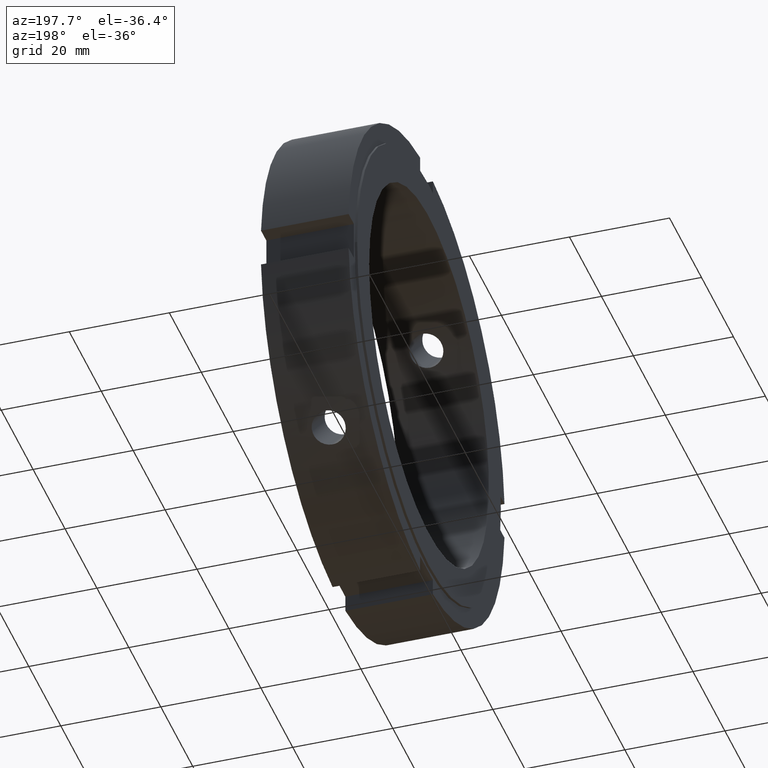
[diagram: clean part render]
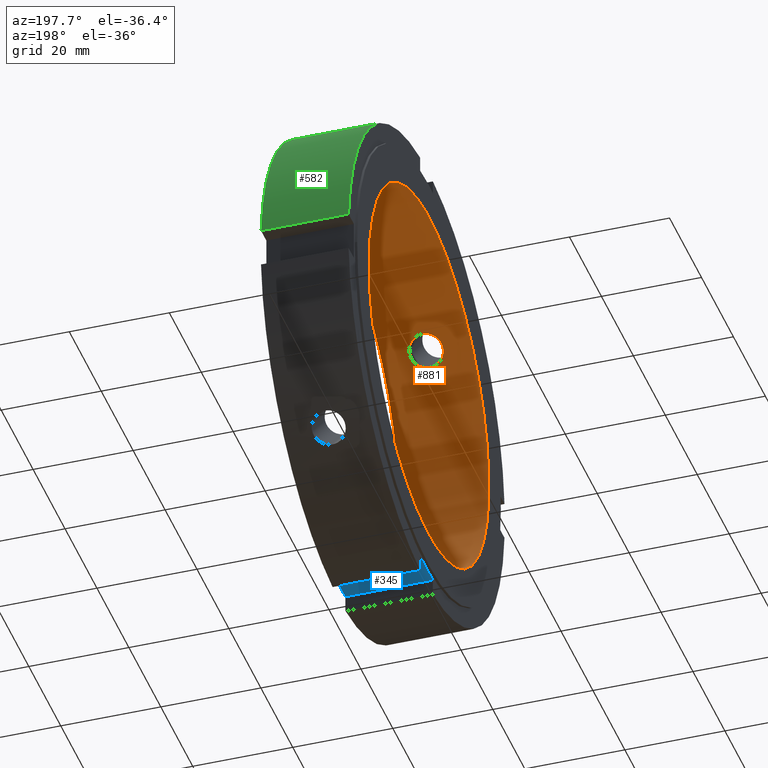
[diagram: same view with three faces highlighted in distinct colors, each labeled with its STEP entity id]
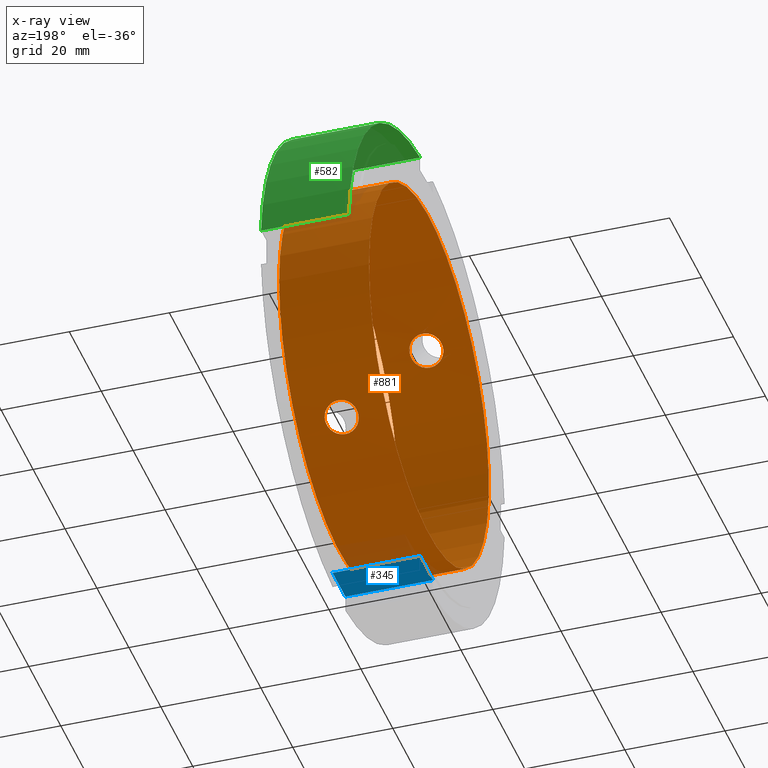
[diagram: x-ray of the same camera — body ghosted, the three highlighted faces saturated]
A machine part, auxiliary view with three faces highlighted in distinct colors.
The next image is the same camera in x-ray (body ghosted, the three faces saturated) — at least one of them is partly hidden behind the body in this view.
Their STEP definitions:

[orange] entity #881 — the highlighted cylindrical surface (bore or boss wall) has radius 37.5 mm, axis along (1, 0, 0).
#114=CARTESIAN_POINT('',(8.999999999999993,-28.762228970976587,24.062090196429633));
#115=VERTEX_POINT('',#114);
#116=CARTESIAN_POINT('',(8.999999999999993,-28.762228970976590,24.062090196429629));
#117=CARTESIAN_POINT('',(9.417541638844668,-28.762228970976590,24.062090196429629));
#118=CARTESIAN_POINT('',(9.862764178717347,-28.708652683310820,24.126587550880750));
#119=CARTESIAN_POINT('',(10.681540739722749,-28.488478344139992,24.386175741150169));
#120=CARTESIAN_POINT('',(11.055113459979346,-28.321602479941419,24.580971807259754));
#121=CARTESIAN_POINT('',(11.645024696410914,-27.930664661521433,25.024294459997574));
#122=CARTESIAN_POINT('',(11.900765851519012,-27.680444806661392,25.302386597793998));
#123=CARTESIAN_POINT('',(12.240009553361961,-27.121133799347700,25.901001789005239));
#124=CARTESIAN_POINT('',(12.323499999999994,-26.811750199984601,26.221258389006469));
#125=CARTESIAN_POINT('',(12.323499999999994,-26.221258389006433,26.811750199984637));
#126=CARTESIAN_POINT('',(12.240009553361954,-25.901001789005203,27.121133799347731));
#127=CARTESIAN_POINT('',(11.900765851518994,-25.302386597793955,27.680444806661427));
#128=CARTESIAN_POINT('',(11.645024696410919,-25.024294459997527,27.930664661521480));
#129=CARTESIAN_POINT('',(11.055113459979342,-24.580971807259708,28.321602479941465));
#130=CARTESIAN_POINT('',(10.681540739722733,-24.386175741150144,28.488478344140024));
#131=CARTESIAN_POINT('',(9.862764178717336,-24.126587550880735,28.708652683310842));
#132=CARTESIAN_POINT('',(9.417541638844666,-24.062090196429601,28.762228970976615));
#133=CARTESIAN_POINT('',(8.582458361155322,-24.062090196429601,28.762228970976615));
#134=CARTESIAN_POINT('',(8.137235821282651,-24.126587550880728,28.708652683310842));
#135=CARTESIAN_POINT('',(7.318459260277253,-24.386175741150144,28.488478344140024));
#136=CARTESIAN_POINT('',(6.944886540020645,-24.580971807259708,28.321602479941465));
#137=CARTESIAN_POINT('',(6.354975303589068,-25.024294459997527,27.930664661521480));
#138=CARTESIAN_POINT('',(6.099234148480994,-25.302386597793955,27.680444806661420));
#139=CARTESIAN_POINT('',(5.759990446638033,-25.901001789005203,27.121133799347724));
#140=CARTESIAN_POINT('',(5.676499999999994,-26.221258389006433,26.811750199984637));
#141=CARTESIAN_POINT('',(5.676499999999994,-26.811750199984601,26.221258389006469));
#142=CARTESIAN_POINT('',(5.759990446638028,-27.121133799347700,25.901001789005242));
#143=CARTESIAN_POINT('',(6.099234148480979,-27.680444806661392,25.302386597793998));
#144=CARTESIAN_POINT('',(6.354975303589070,-27.930664661521433,25.024294459997574));
#145=CARTESIAN_POINT('',(6.944886540020639,-28.321602479941419,24.580971807259754));
#146=CARTESIAN_POINT('',(7.318459260277237,-28.488478344139992,24.386175741150169));
#147=CARTESIAN_POINT('',(8.137235821282641,-28.708652683310820,24.126587550880750));
#148=CARTESIAN_POINT('',(8.582458361155320,-28.762228970976590,24.062090196429629));
#149=CARTESIAN_POINT('',(8.999999999999993,-28.762228970976590,24.062090196429629));
#150=B_SPLINE_CURVE_WITH_KNOTS('',3,(#116,#117,#118,#119,#120,#121,#122,#123,#124,#125,#126,#127,#128,#129,#130,#131,#132,#133,#134,#135,#136,#137,#138,#139,#140,#141,#142,#143,#144,#145,#146,#147,#148,#149),.UNSPECIFIED.,.T.,.U.,(4,2,2,2,2,2,2,2,2,2,2,2,2,2,2,2,4),(0.0,0.125262491653402,0.250524983306804,0.375787212440141,0.501049441573477,0.626311670706814,0.751573899840152,0.876836391493553,1.002098883146955,1.127361374800356,1.252623866453758,1.377886095587095,1.503148324720433,1.628410553853769,1.753672782987105,1.878935274640507,2.004197766293909),.UNSPECIFIED.);
#151=EDGE_CURVE('',#115,#115,#150,.T.);
#202=CARTESIAN_POINT('',(8.999999999999993,24.062090196429629,-28.762228970976590));
#203=VERTEX_POINT('',#202);
#204=CARTESIAN_POINT('',(8.999999999999993,24.062090196429622,-28.762228970976590));
#205=CARTESIAN_POINT('',(8.582458361155322,24.062090196429622,-28.762228970976590));
#206=CARTESIAN_POINT('',(8.137235821282649,24.126587550880746,-28.708652683310824));
#207=CARTESIAN_POINT('',(7.318459260277248,24.386175741150161,-28.488478344140006));
#208=CARTESIAN_POINT('',(6.944886540020643,24.580971807259733,-28.321602479941443));
#209=CARTESIAN_POINT('',(6.354975303589072,25.024294459997556,-27.930664661521455));
#210=CARTESIAN_POINT('',(6.099234148480988,25.302386597793980,-27.680444806661406));
#211=CARTESIAN_POINT('',(5.759990446638033,25.901001789005225,-27.121133799347710));
#212=CARTESIAN_POINT('',(5.676499999999994,26.221258389006454,-26.811750199984623));
#213=CARTESIAN_POINT('',(5.676499999999994,26.811750199984623,-26.221258389006451));
#214=CARTESIAN_POINT('',(5.759990446638032,27.121133799347717,-25.901001789005228));
#215=CARTESIAN_POINT('',(6.099234148480978,27.680444806661409,-25.302386597793983));
#216=CARTESIAN_POINT('',(6.354975303589070,27.930664661521448,-25.024294459997563));
#217=CARTESIAN_POINT('',(6.944886540020638,28.321602479941433,-24.580971807259747));
#218=CARTESIAN_POINT('',(7.318459260277235,28.488478344140013,-24.386175741150154));
#219=CARTESIAN_POINT('',(8.137235821282637,28.708652683310838,-24.126587550880739));
#220=CARTESIAN_POINT('',(8.582458361155320,28.762228970976590,-24.062090196429622));
#221=CARTESIAN_POINT('',(9.417541638844668,28.762228970976590,-24.062090196429622));
#222=CARTESIAN_POINT('',(9.862764178717352,28.708652683310838,-24.126587550880739));
#223=CARTESIAN_POINT('',(10.681540739722754,28.488478344140013,-24.386175741150154));
#224=CARTESIAN_POINT('',(11.055113459979351,28.321602479941433,-24.580971807259747));
#225=CARTESIAN_POINT('',(11.645024696410919,27.930664661521448,-25.024294459997563));
#226=CARTESIAN_POINT('',(11.900765851519012,27.680444806661406,-25.302386597793983));
#227=CARTESIAN_POINT('',(12.240009553361958,27.121133799347710,-25.901001789005221));
#228=CARTESIAN_POINT('',(12.323499999999994,26.811750199984623,-26.221258389006451));
#229=CARTESIAN_POINT('',(12.323499999999994,26.221258389006454,-26.811750199984623));
#230=CARTESIAN_POINT('',(12.240009553361958,25.901001789005225,-27.121133799347710));
#231=CARTESIAN_POINT('',(11.900765851519001,25.302386597793980,-27.680444806661406));
#232=CARTESIAN_POINT('',(11.645024696410914,25.024294459997556,-27.930664661521455));
#233=CARTESIAN_POINT('',(11.055113459979342,24.580971807259733,-28.321602479941443));
#234=CARTESIAN_POINT('',(10.681540739722735,24.386175741150161,-28.488478344140006));
#235=CARTESIAN_POINT('',(9.862764178717336,24.126587550880750,-28.708652683310824));
#236=CARTESIAN_POINT('',(9.417541638844666,24.062090196429622,-28.762228970976590));
#237=CARTESIAN_POINT('',(8.999999999999993,24.062090196429622,-28.762228970976590));
#238=B_SPLINE_CURVE_WITH_KNOTS('',3,(#204,#205,#206,#207,#208,#209,#210,#211,#212,#213,#214,#215,#216,#217,#218,#219,#220,#221,#222,#223,#224,#225,#226,#227,#228,#229,#230,#231,#232,#233,#234,#235,#236,#237),.UNSPECIFIED.,.T.,.U.,(4,2,2,2,2,2,2,2,2,2,2,2,2,2,2,2,4),(0.0,0.125262491653402,0.250524983306804,0.375787212440140,0.501049441573477,0.626311670706813,0.751573899840149,0.876836391493551,1.002098883146953,1.127361374800356,1.252623866453758,1.377886095587094,1.503148324720430,1.628410553853766,1.753672782987103,1.878935274640505,2.004197766293907),.UNSPECIFIED.);
#239=EDGE_CURVE('',#203,#203,#238,.T.);
#712=CARTESIAN_POINT('',(17.999999999999993,37.500000000000000,0.0));
#713=VERTEX_POINT('',#712);
#714=CARTESIAN_POINT('',(17.999999999999993,0.0,0.0));
#715=DIRECTION('',(1.0,0.0,0.0));
#716=DIRECTION('',(0.0,1.0,0.0));
#717=AXIS2_PLACEMENT_3D('',#714,#715,#716);
#718=CIRCLE('',#717,37.500000000000000);
#719=EDGE_CURVE('',#713,#713,#718,.T.);
#805=CARTESIAN_POINT('',(-1.058706E-014,37.500000000000000,0.0));
#806=VERTEX_POINT('',#805);
#807=CARTESIAN_POINT('',(-1.058615E-014,0.0,0.0));
#808=DIRECTION('',(1.0,0.0,0.0));
#809=DIRECTION('',(0.0,1.0,0.0));
#810=AXIS2_PLACEMENT_3D('',#807,#808,#809);
#811=CIRCLE('',#810,37.500000000000000);
#812=EDGE_CURVE('',#806,#806,#811,.T.);
#864=CARTESIAN_POINT('',(8.999999999999989,0.0,0.0));
#865=DIRECTION('',(1.0,0.0,0.0));
#866=DIRECTION('',(0.0,1.0,0.0));
#867=AXIS2_PLACEMENT_3D('',#864,#865,#866);
#868=CYLINDRICAL_SURFACE('',#867,37.500000000000000);
#869=ORIENTED_EDGE('',*,*,#812,.F.);
#870=EDGE_LOOP('',(#869));
#871=FACE_OUTER_BOUND('',#870,.T.);
#872=ORIENTED_EDGE('',*,*,#151,.T.);
#873=EDGE_LOOP('',(#872));
#874=FACE_BOUND('',#873,.T.);
#875=ORIENTED_EDGE('',*,*,#239,.T.);
#876=EDGE_LOOP('',(#875));
#877=FACE_BOUND('',#876,.T.);
#878=ORIENTED_EDGE('',*,*,#719,.T.);
#879=EDGE_LOOP('',(#878));
#880=FACE_BOUND('',#879,.T.);
#881=ADVANCED_FACE('',(#871,#874,#877,#880),#868,.F.);

[blue] entity #345 — the highlighted planar face has unit normal (0, 0, 1).
#249=CARTESIAN_POINT('',(0.499999999999989,-4.000000000000006,-45.500000000000007));
#250=VERTEX_POINT('',#249);
#259=CARTESIAN_POINT('',(17.999999999999989,-4.000000000000006,-45.500000000000007));
#260=VERTEX_POINT('',#259);
#261=CARTESIAN_POINT('',(17.999999999999989,-4.000000000000006,-45.500000000000007));
#262=DIRECTION('',(-1.0,0.0,0.0));
#263=VECTOR('',#262,17.500000000000000);
#264=LINE('',#261,#263);
#265=EDGE_CURVE('',#260,#250,#264,.T.);
#291=CARTESIAN_POINT('',(0.499999999999989,3.999999999999990,-45.500000000000007));
#292=VERTEX_POINT('',#291);
#307=CARTESIAN_POINT('',(17.999999999999989,3.999999999999990,-45.500000000000007));
#308=VERTEX_POINT('',#307);
#315=CARTESIAN_POINT('',(17.999999999999989,3.999999999999990,-45.500000000000007));
#316=DIRECTION('',(-1.0,0.0,0.0));
#317=VECTOR('',#316,17.500000000000000);
#318=LINE('',#315,#317);
#319=EDGE_CURVE('',#308,#292,#318,.T.);
#324=CARTESIAN_POINT('',(17.999999999999989,3.999999999999990,-45.500000000000007));
#325=DIRECTION('',(0.0,0.0,1.0));
#326=DIRECTION('',(0.0,-1.0,0.0));
#327=AXIS2_PLACEMENT_3D('',#324,#325,#326);
#328=PLANE('',#327);
#329=CARTESIAN_POINT('',(0.499999999999989,3.999999999999989,-45.500000000000000));
#330=DIRECTION('',(0.0,-1.0,0.0));
#331=VECTOR('',#330,7.999999999999996);
#332=LINE('',#329,#331);
#333=EDGE_CURVE('',#292,#250,#332,.T.);
#334=ORIENTED_EDGE('',*,*,#333,.F.);
#335=ORIENTED_EDGE('',*,*,#319,.F.);
#336=CARTESIAN_POINT('',(17.999999999999989,-4.000000000000007,-45.500000000000000));
#337=DIRECTION('',(0.0,1.0,0.0));
#338=VECTOR('',#337,7.999999999999996);
#339=LINE('',#336,#338);
#340=EDGE_CURVE('',#260,#308,#339,.T.);
#341=ORIENTED_EDGE('',*,*,#340,.F.);
#342=ORIENTED_EDGE('',*,*,#265,.T.);
#343=EDGE_LOOP('',(#334,#335,#341,#342));
#344=FACE_OUTER_BOUND('',#343,.T.);
#345=ADVANCED_FACE('',(#344),#328,.F.);

[green] entity #582 — the highlighted cylindrical surface (partial cylindrical patch) has radius 49 mm, axis along (1, 0, 0).
#455=CARTESIAN_POINT('',(0.499999999999989,4.000000000000001,48.836461788299125));
#456=VERTEX_POINT('',#455);
#471=CARTESIAN_POINT('',(17.999999999999989,4.000000000000001,48.836461788299125));
#472=VERTEX_POINT('',#471);
#479=CARTESIAN_POINT('',(0.499999999999989,4.0,48.836461788299125));
#480=DIRECTION('',(1.0,0.0,0.0));
#481=VECTOR('',#480,17.500000000000000);
#482=LINE('',#479,#481);
#483=EDGE_CURVE('',#456,#472,#482,.T.);
#550=CARTESIAN_POINT('',(9.249999999999989,0.0,0.0));
#551=DIRECTION('',(1.0,0.0,0.0));
#552=DIRECTION('',(0.0,1.0,0.0));
#553=AXIS2_PLACEMENT_3D('',#550,#551,#552);
#554=CYLINDRICAL_SURFACE('',#553,49.0);
#555=ORIENTED_EDGE('',*,*,#483,.T.);
#556=CARTESIAN_POINT('',(17.999999999999989,48.836461788299125,3.999999999999998));
#557=VERTEX_POINT('',#556);
#558=CARTESIAN_POINT('',(17.999999999999989,0.0,0.0));
#559=DIRECTION('',(1.0,0.0,0.0));
#560=DIRECTION('',(0.0,1.0,0.0));
#561=AXIS2_PLACEMENT_3D('',#558,#559,#560);
#562=CIRCLE('',#561,49.0);
#563=EDGE_CURVE('',#557,#472,#562,.T.);
#564=ORIENTED_EDGE('',*,*,#563,.F.);
#565=CARTESIAN_POINT('',(0.499999999999989,48.836461788299125,3.999999999999998));
#566=VERTEX_POINT('',#565);
#567=CARTESIAN_POINT('',(17.999999999999989,48.836461788299125,3.999999999999998));
#568=DIRECTION('',(-1.0,0.0,0.0));
#569=VECTOR('',#568,17.500000000000000);
#570=LINE('',#567,#569);
#571=EDGE_CURVE('',#557,#566,#570,.T.);
#572=ORIENTED_EDGE('',*,*,#571,.T.);
#573=CARTESIAN_POINT('',(0.499999999999989,0.0,0.0));
#574=DIRECTION('',(1.0,0.0,0.0));
#575=DIRECTION('',(0.0,1.0,0.0));
#576=AXIS2_PLACEMENT_3D('',#573,#574,#575);
#577=CIRCLE('',#576,49.0);
#578=EDGE_CURVE('',#566,#456,#577,.T.);
#579=ORIENTED_EDGE('',*,*,#578,.T.);
#580=EDGE_LOOP('',(#555,#564,#572,#579));
#581=FACE_OUTER_BOUND('',#580,.T.);
#582=ADVANCED_FACE('',(#581),#554,.T.);